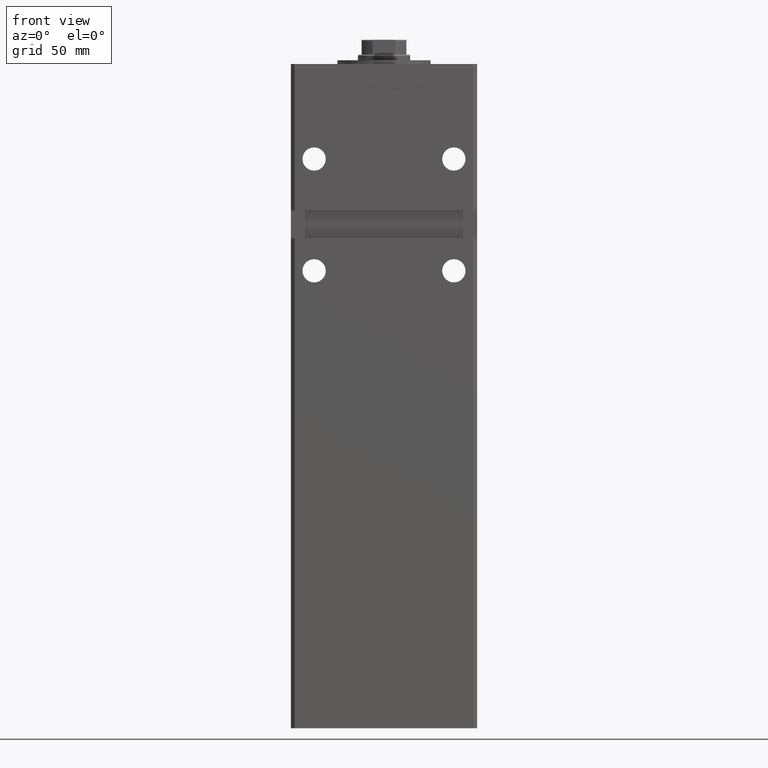
[diagram: clean part render]
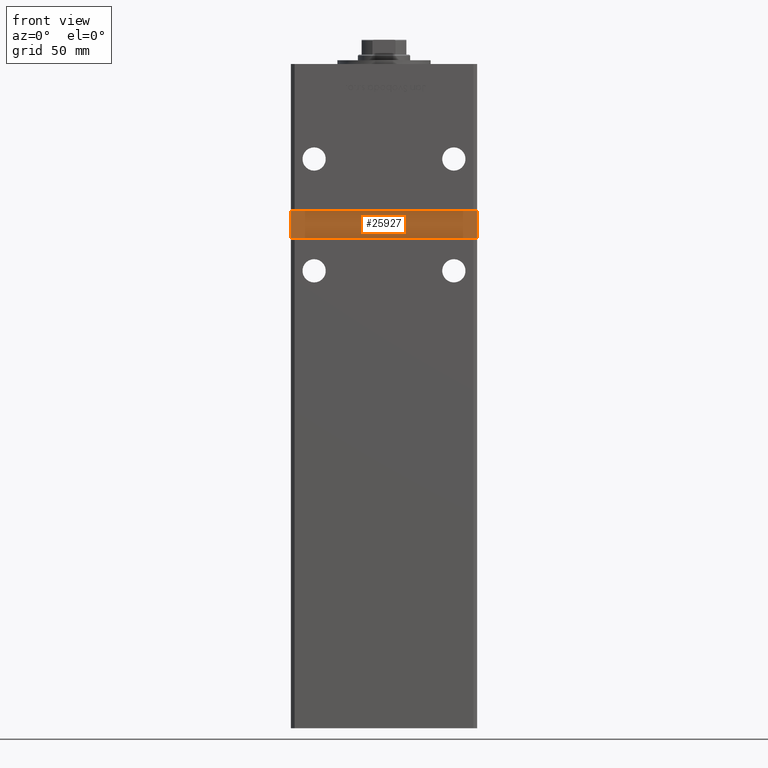
[diagram: same view with one face highlighted and labeled with its STEP entity id]
A machine part, front view. The second image highlights one B-rep face of the part: STEP entity #25927.
In plain terms, the highlighted planar face has unit normal (0, -1, 0).
Its self-contained STEP definition (entity closure, byte-faithful):
#711 = DIRECTION ( 'NONE',  ( -1.000000000000000000, -0.000000000000000000, -0.000000000000000000 ) ) ;
#1033 = EDGE_CURVE ( 'NONE', #17734, #3727, #34267, .T. ) ;
#3548 = CARTESIAN_POINT ( 'NONE',  ( 49.99999999999998579, -38.50000000000000000, 259.0000000000000000 ) ) ;
#3727 = VERTEX_POINT ( 'NONE', #20125 ) ;
#4752 = EDGE_CURVE ( 'NONE', #3727, #32606, #42317, .T. ) ;
#10151 = ORIENTED_EDGE ( 'NONE', *, *, #46678, .T. ) ;
#10280 = DIRECTION ( 'NONE',  ( 0.000000000000000000, -1.000000000000000000, 0.000000000000000000 ) ) ;
#13333 = LINE ( 'NONE', #16584, #39255 ) ;
#14629 = CARTESIAN_POINT ( 'NONE',  ( 49.99999999999998579, -38.50000000000000000, 259.0000000000000000 ) ) ;
#16242 = VECTOR ( 'NONE', #19948, 1000.000000000000000 ) ;
#16584 = CARTESIAN_POINT ( 'NONE',  ( -49.99999999999998579, -38.50000000000000000, 259.0000000000000000 ) ) ;
#17655 = EDGE_CURVE ( 'NONE', #32606, #50284, #49027, .T. ) ;
#17734 = VERTEX_POINT ( 'NONE', #30663 ) ;
#18619 = PLANE ( 'NONE',  #35317 ) ;
#19258 = CARTESIAN_POINT ( 'NONE',  ( 49.99999999999998579, -38.49999999999999289, 244.0000000000000000 ) ) ;
#19948 = DIRECTION ( 'NONE',  ( -0.000000000000000000, -0.000000000000000000, 1.000000000000000000 ) ) ;
#20125 = CARTESIAN_POINT ( 'NONE',  ( -49.99999999999998579, -38.50000000000000000, 244.0000000000000000 ) ) ;
#21453 = VECTOR ( 'NONE', #34808, 1000.000000000000000 ) ;
#25927 = ADVANCED_FACE ( 'NONE', ( #30200 ), #18619, .T. ) ;
#26444 = CARTESIAN_POINT ( 'NONE',  ( -49.99999999999998579, -38.50000000000000000, 259.0000000000000000 ) ) ;
#30200 = FACE_OUTER_BOUND ( 'NONE', #41330, .T. ) ;
#30663 = CARTESIAN_POINT ( 'NONE',  ( -49.99999999999998579, -38.50000000000000000, 259.0000000000000000 ) ) ;
#32606 = VERTEX_POINT ( 'NONE', #19258 ) ;
#34267 = LINE ( 'NONE', #26444, #21453 ) ;
#34808 = DIRECTION ( 'NONE',  ( 0.000000000000000000, 0.000000000000000000, -1.000000000000000000 ) ) ;
#35317 = AXIS2_PLACEMENT_3D ( 'NONE', #47445, #10280, #43421 ) ;
#35590 = ORIENTED_EDGE ( 'NONE', *, *, #4752, .T. ) ;
#38393 = ORIENTED_EDGE ( 'NONE', *, *, #17655, .T. ) ;
#39255 = VECTOR ( 'NONE', #711, 1000.000000000000000 ) ;
#41330 = EDGE_LOOP ( 'NONE', ( #38393, #10151, #49688, #35590 ) ) ;
#42317 = LINE ( 'NONE', #50380, #49117 ) ;
#43421 = DIRECTION ( 'NONE',  ( 0.000000000000000000, -0.000000000000000000, -1.000000000000000000 ) ) ;
#46087 = DIRECTION ( 'NONE',  ( 1.000000000000000000, 0.000000000000000000, 0.000000000000000000 ) ) ;
#46678 = EDGE_CURVE ( 'NONE', #50284, #17734, #13333, .T. ) ;
#47445 = CARTESIAN_POINT ( 'NONE',  ( 0.000000000000000000, -38.50000000000000000, 0.000000000000000000 ) ) ;
#49027 = LINE ( 'NONE', #3548, #16242 ) ;
#49117 = VECTOR ( 'NONE', #46087, 1000.000000000000000 ) ;
#49688 = ORIENTED_EDGE ( 'NONE', *, *, #1033, .T. ) ;
#50284 = VERTEX_POINT ( 'NONE', #14629 ) ;
#50380 = CARTESIAN_POINT ( 'NONE',  ( -49.99999999999998579, -38.50000000000000000, 244.0000000000000000 ) ) ;